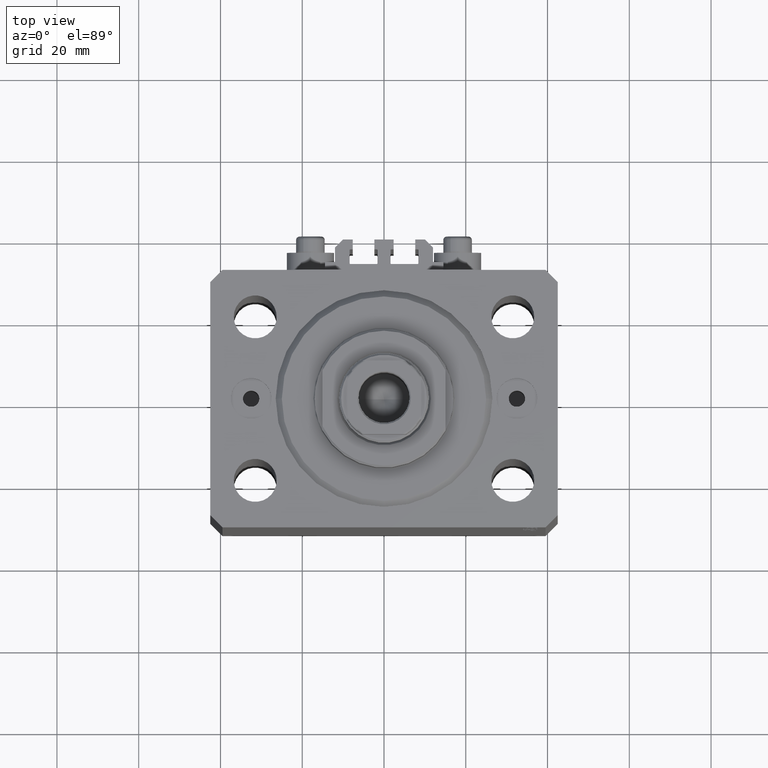
[diagram: clean part render]
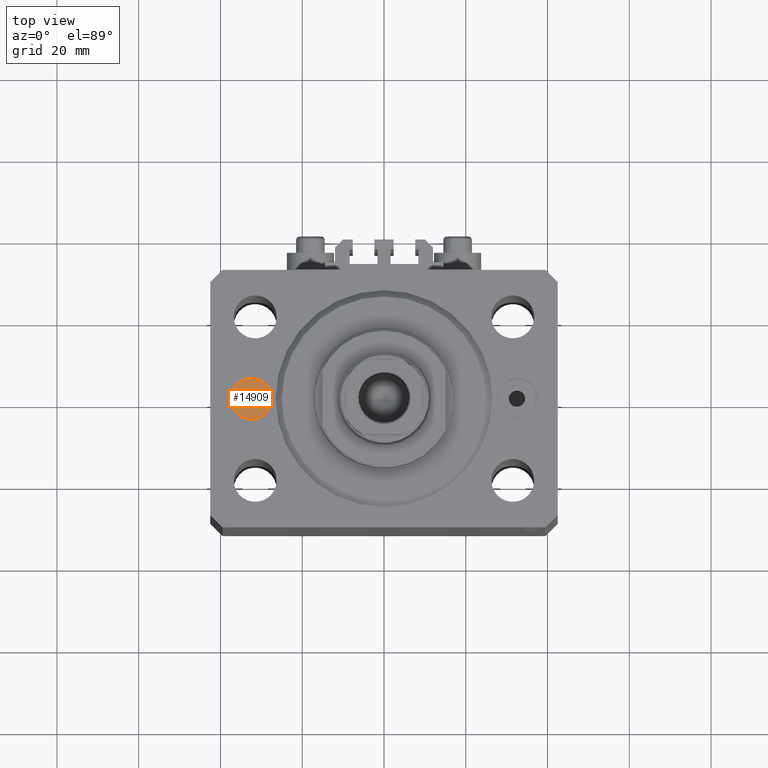
[diagram: same view with one face highlighted and labeled with its STEP entity id]
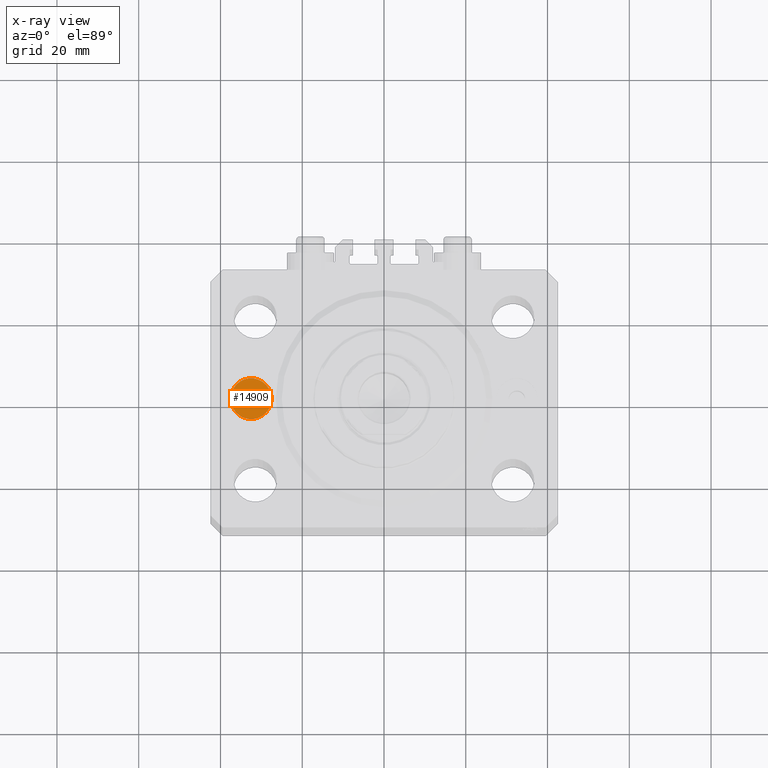
[diagram: x-ray of the same camera — body ghosted, the highlighted face saturated]
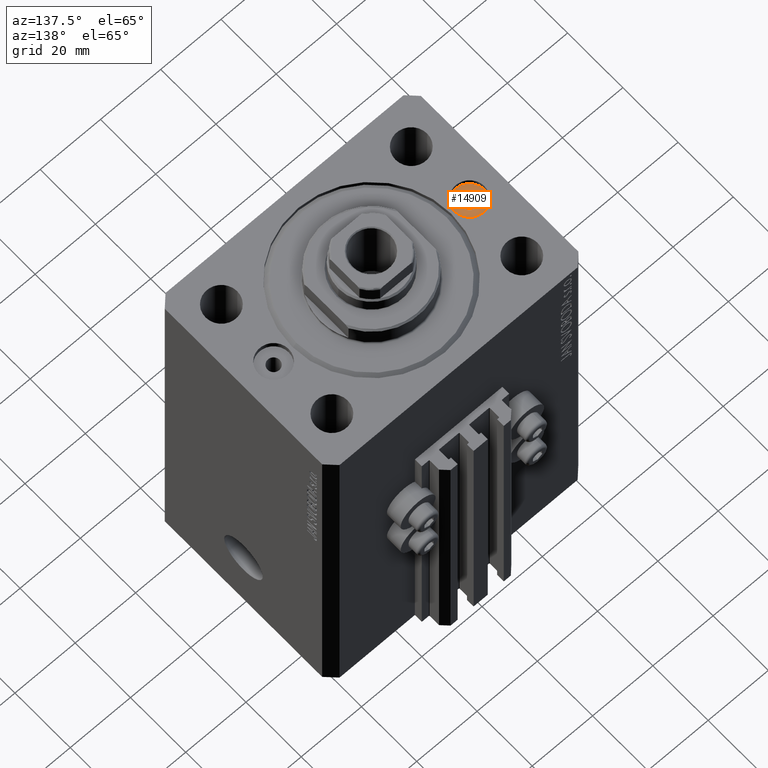
[diagram: same view with one face highlighted and labeled with its STEP entity id]
A machine part, top view. The second image highlights one B-rep face of the part: STEP entity #14909.
The next image is the same camera in x-ray: the body ghosted, the highlighted face saturated — about 0% of this face is hidden behind the body in this view.
A second angle (auxiliary view) of the same face is appended — the face is thin or edge-on in the first view.
In plain terms, the highlighted planar face has unit normal (0, 0, 1).
Its self-contained STEP definition (entity closure, byte-faithful):
#1351 = EDGE_LOOP ( 'NONE', ( #45806, #43661 ) ) ;
#1584 = CARTESIAN_POINT ( 'NONE',  ( -27.50000000000000000, 0.000000000000000000, -1.899999999999999911 ) ) ;
#2410 = AXIS2_PLACEMENT_3D ( 'NONE', #40779, #19759, #41011 ) ;
#3995 = AXIS2_PLACEMENT_3D ( 'NONE', #9202, #23299, #16135 ) ;
#4707 = CARTESIAN_POINT ( 'NONE',  ( -32.50000000000000000, 0.000000000000000000, -1.899999999999999911 ) ) ;
#8128 = VERTEX_POINT ( 'NONE', #9154 ) ;
#8314 = CARTESIAN_POINT ( 'NONE',  ( -37.50000000000000000, 6.123233995736768255E-16, -1.899999999999999911 ) ) ;
#9154 = CARTESIAN_POINT ( 'NONE',  ( -30.50000000000000355, 0.000000000000000000, -1.899999999999999911 ) ) ;
#9202 = CARTESIAN_POINT ( 'NONE',  ( -32.50000000000000000, 0.000000000000000000, -1.899999999999999911 ) ) ;
#10962 = AXIS2_PLACEMENT_3D ( 'NONE', #4707, #33360, #15207 ) ;
#11842 = ORIENTED_EDGE ( 'NONE', *, *, #12861, .F. ) ;
#12861 = EDGE_CURVE ( 'NONE', #8128, #35155, #43571, .T. ) ;
#14909 = ADVANCED_FACE ( 'NONE', ( #20191, #34524 ), #38563, .T. ) ;
#15207 = DIRECTION ( 'NONE',  ( 1.000000000000000000, 0.000000000000000000, 0.000000000000000000 ) ) ;
#16135 = DIRECTION ( 'NONE',  ( 1.000000000000000000, 0.000000000000000000, -0.000000000000000000 ) ) ;
#16461 = CARTESIAN_POINT ( 'NONE',  ( -32.50000000000000000, 0.000000000000000000, -1.899999999999999911 ) ) ;
#17819 = EDGE_CURVE ( 'NONE', #31068, #29866, #41898, .T. ) ;
#17935 = EDGE_CURVE ( 'NONE', #35155, #8128, #23599, .T. ) ;
#19759 = DIRECTION ( 'NONE',  ( 0.000000000000000000, 0.000000000000000000, 1.000000000000000000 ) ) ;
#19807 = DIRECTION ( 'NONE',  ( 0.000000000000000000, 0.000000000000000000, 1.000000000000000000 ) ) ;
#20191 = FACE_BOUND ( 'NONE', #23696, .T. ) ;
#23299 = DIRECTION ( 'NONE',  ( 0.000000000000000000, 0.000000000000000000, 1.000000000000000000 ) ) ;
#23599 = CIRCLE ( 'NONE', #25140, 1.999999999999998224 ) ;
#23696 = EDGE_LOOP ( 'NONE', ( #11842, #36816 ) ) ;
#23902 = CIRCLE ( 'NONE', #10962, 5.000000000000000888 ) ;
#25140 = AXIS2_PLACEMENT_3D ( 'NONE', #35317, #19807, #42241 ) ;
#26670 = AXIS2_PLACEMENT_3D ( 'NONE', #16461, #26969, #31512 ) ;
#26969 = DIRECTION ( 'NONE',  ( 0.000000000000000000, 0.000000000000000000, 1.000000000000000000 ) ) ;
#29866 = VERTEX_POINT ( 'NONE', #1584 ) ;
#31068 = VERTEX_POINT ( 'NONE', #8314 ) ;
#31512 = DIRECTION ( 'NONE',  ( 1.000000000000000000, 0.000000000000000000, 0.000000000000000000 ) ) ;
#33360 = DIRECTION ( 'NONE',  ( 0.000000000000000000, 0.000000000000000000, 1.000000000000000000 ) ) ;
#34524 = FACE_OUTER_BOUND ( 'NONE', #1351, .T. ) ;
#35155 = VERTEX_POINT ( 'NONE', #44360 ) ;
#35317 = CARTESIAN_POINT ( 'NONE',  ( -32.50000000000000000, 0.000000000000000000, -1.899999999999999911 ) ) ;
#36816 = ORIENTED_EDGE ( 'NONE', *, *, #17935, .F. ) ;
#38563 = PLANE ( 'NONE',  #3995 ) ;
#40779 = CARTESIAN_POINT ( 'NONE',  ( -32.50000000000000000, 0.000000000000000000, -1.899999999999999911 ) ) ;
#41011 = DIRECTION ( 'NONE',  ( 1.000000000000000000, 0.000000000000000000, 0.000000000000000000 ) ) ;
#41283 = EDGE_CURVE ( 'NONE', #29866, #31068, #23902, .T. ) ;
#41898 = CIRCLE ( 'NONE', #26670, 5.000000000000000888 ) ;
#42241 = DIRECTION ( 'NONE',  ( 1.000000000000000000, 0.000000000000000000, 0.000000000000000000 ) ) ;
#43571 = CIRCLE ( 'NONE', #2410, 1.999999999999998224 ) ;
#43661 = ORIENTED_EDGE ( 'NONE', *, *, #17819, .T. ) ;
#44360 = CARTESIAN_POINT ( 'NONE',  ( -34.50000000000000000, 2.449293598294701977E-16, -1.899999999999999911 ) ) ;
#45806 = ORIENTED_EDGE ( 'NONE', *, *, #41283, .T. ) ;